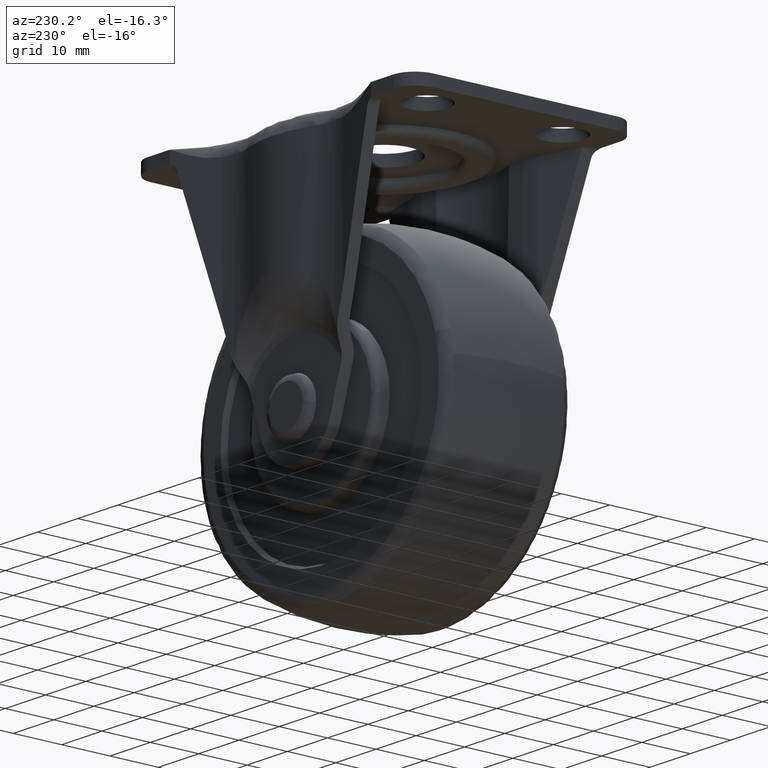
[diagram: clean part render]
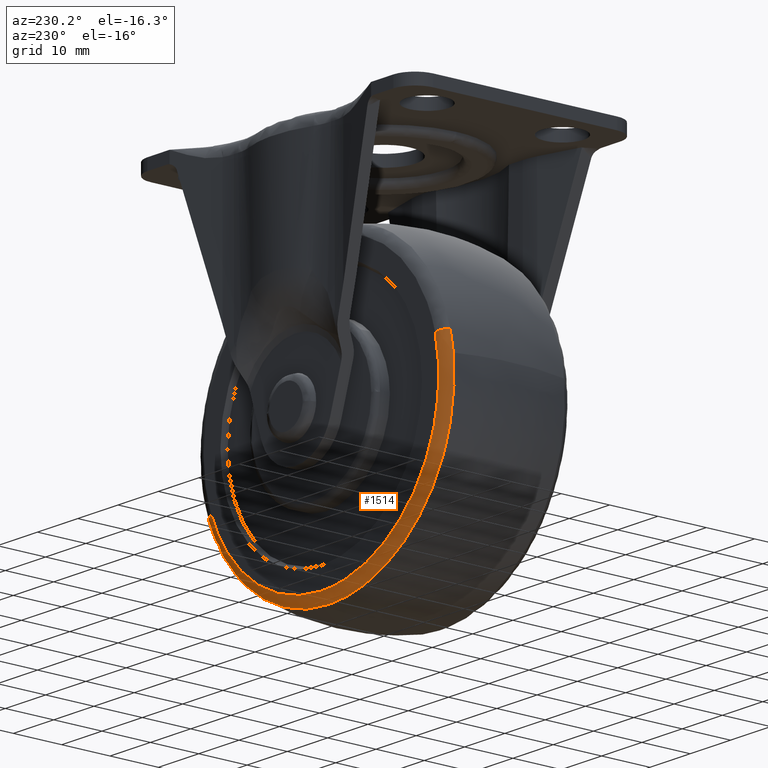
[diagram: same view with one face highlighted and labeled with its STEP entity id]
A machine part, auxiliary view. The second image highlights one B-rep face of the part: STEP entity #1514.
In plain terms, the highlighted face is a freeform B-spline surface patch.
Its self-contained STEP definition (entity closure, byte-faithful):
#1314=CARTESIAN_POINT('',(27.276071154664269,12.999999999999879,-10.486911735159930));
#1315=VERTEX_POINT('',#1314);
#1336=CARTESIAN_POINT('',(-28.304502118794069,12.999999999999879,7.267360946287144));
#1337=VERTEX_POINT('',#1336);
#1352=CARTESIAN_POINT('',(-30.190113501192521,11.458346236276659,7.751503661654002));
#1353=VERTEX_POINT('',#1352);
#1354=CARTESIAN_POINT('',(-28.304502118794069,12.999999999999879,7.267360946287144));
#1355=CARTESIAN_POINT('',(-28.601943165960460,13.000516784397400,7.343730826934033));
#1356=CARTESIAN_POINT('',(-29.115038738644699,12.875432114353980,7.475471378619806));
#1357=CARTESIAN_POINT('',(-29.691804316981749,12.443076544727910,7.623559609222435));
#1358=CARTESIAN_POINT('',(-30.029237934947869,11.963985388915210,7.710197836800468));
#1359=CARTESIAN_POINT('',(-30.152981338045361,11.621336451964989,7.741969742591822));
#1360=CARTESIAN_POINT('',(-30.190113501192521,11.458346236276659,7.751503661654002));
#1361=B_SPLINE_CURVE_WITH_KNOTS('',3,(#1354,#1355,#1356,#1357,#1358,#1359,#1360),.UNSPECIFIED.,.F.,.U.,(4,1,1,1,4),(0.000000290388395,0.921048666674197,1.590824266936530,2.176978937697951,2.679333112662247),.UNSPECIFIED.);
#1362=EDGE_CURVE('',#1337,#1353,#1361,.T.);
#1380=CARTESIAN_POINT('',(29.093172507093531,11.458333520081990,-11.185538065268309));
#1381=VERTEX_POINT('',#1380);
#1399=CARTESIAN_POINT('',(27.276071154664269,12.999999999999879,-10.486911735159930));
#1400=CARTESIAN_POINT('',(27.510548538967559,13.000244550194820,-10.577061948442321));
#1401=CARTESIAN_POINT('',(27.953204781751261,12.909414028035711,-10.747251303023409));
#1402=CARTESIAN_POINT('',(28.495647972405379,12.557829891310000,-10.955806040526509));
#1403=CARTESIAN_POINT('',(28.891522839425789,12.066817349290799,-11.108009221250700));
#1404=CARTESIAN_POINT('',(29.045541339690441,11.675705437125551,-11.167225169486359));
#1405=CARTESIAN_POINT('',(29.093172507093531,11.458333520081990,-11.185538065268309));
#1406=B_SPLINE_CURVE_WITH_KNOTS('',3,(#1399,#1400,#1401,#1402,#1403,#1404,#1405),.UNSPECIFIED.,.F.,.U.,(4,1,1,1,4),(0.000000290394483,0.753577384631769,1.423388876057444,2.009509702239837,2.679346172854964),.UNSPECIFIED.);
#1407=EDGE_CURVE('',#1315,#1381,#1406,.T.);
#1412=CARTESIAN_POINT('',(-28.185591142616687,12.996228408587063,7.236829796591108));
#1413=CARTESIAN_POINT('',(-35.422420939207775,12.996228408587061,-20.948761346025560));
#1414=CARTESIAN_POINT('',(-7.236829796591110,12.996228408587063,-28.185591142616687));
#1415=CARTESIAN_POINT('',(17.862205198810440,12.996228408587060,-34.629928016778194));
#1416=CARTESIAN_POINT('',(27.161480752764273,12.996228408587060,-10.442854824270864));
#1417=CARTESIAN_POINT('',(-29.919851770484950,13.106345489153590,7.682112243331616));
#1418=CARTESIAN_POINT('',(-37.601964013816563,13.106345489153593,-22.237739527153355));
#1419=CARTESIAN_POINT('',(-7.682112243331618,13.106345489153590,-29.919851770484950));
#1420=CARTESIAN_POINT('',(18.961267448257558,13.106345489153586,-36.760708967992812));
#1421=CARTESIAN_POINT('',(28.832727824566767,13.106345489153588,-11.085404128014002));
#1422=CARTESIAN_POINT('',(-30.213755327911024,11.338298996869856,7.757573851035462));
#1423=CARTESIAN_POINT('',(-37.971329178946490,11.338298996869854,-22.456181476875557));
#1424=CARTESIAN_POINT('',(-7.757573851035464,11.338298996869856,-30.213755327911024));
#1425=CARTESIAN_POINT('',(19.147524519285156,11.338298996869851,-37.121810460810210));
#1426=CARTESIAN_POINT('',(29.115952532461129,11.338298996869854,-11.194296368982357));
#1434=(BOUNDED_SURFACE()B_SPLINE_SURFACE(2,2,((#1412,#1417,#1422),(#1413,#1418,#1423),(#1414,#1419,#1424),(#1415,#1420,#1425),(#1416,#1421,#1426)),.UNSPECIFIED.,.F.,.F.,.U.)B_SPLINE_SURFACE_WITH_KNOTS((3,2,3),(3,3),(0.0,51.683521784377092,99.232361826004009),(0.0,3.062138862030660),.UNSPECIFIED.)GEOMETRIC_REPRESENTATION_ITEM()RATIONAL_B_SPLINE_SURFACE(((0.914431650194860,0.681684827787722,0.917015407765076),(0.646600820784391,0.482023964360682,0.648427813283232),(0.914431650194860,0.681684827787722,0.917015407765076),(0.668027287137228,0.497996833434845,0.669914820841780),(0.875006952105639,0.652294748691261,0.877479313857348)))REPRESENTATION_ITEM('')SURFACE());
#1435=CARTESIAN_POINT('',(0.0,12.999999999999879,-29.222583301868301));
#1436=VERTEX_POINT('',#1435);
#1437=CARTESIAN_POINT('',(0.0,12.999999999999879,-29.222583301868301));
#1438=CARTESIAN_POINT('',(1.740507578618445,12.999999999999870,-29.222736748513942));
#1439=CARTESIAN_POINT('',(5.404717564773534,12.999999999999890,-28.894329859673402));
#1440=CARTESIAN_POINT('',(10.274043141226530,12.999999999999870,-27.507806050460040));
#1441=CARTESIAN_POINT('',(15.160652550773371,12.999999999999810,-25.167103264106650));
#1442=CARTESIAN_POINT('',(19.269396634891748,12.999999999999931,-22.200565396522290));
#1443=CARTESIAN_POINT('',(22.615163732686899,12.999999999999870,-18.660862199151950));
#1444=CARTESIAN_POINT('',(25.267492044755681,12.999999999999890,-14.916168250398760));
#1445=CARTESIAN_POINT('',(26.618795948690099,12.999999999999890,-12.197084805331130));
#1446=CARTESIAN_POINT('',(27.276071154664269,12.999999999999879,-10.486911735159930));
#1447=B_SPLINE_CURVE_WITH_KNOTS('',3,(#1437,#1438,#1439,#1440,#1441,#1442,#1443,#1444,#1445,#1446),.UNSPECIFIED.,.F.,.U.,(4,1,1,1,1,1,1,4),(0.000000091332701,5.221526927930348,10.992735210749350,15.115035113657679,21.435779628184509,26.107715145500990,29.680352830185679,35.176714110060061),.UNSPECIFIED.);
#1448=EDGE_CURVE('',#1436,#1315,#1447,.T.);
#1449=ORIENTED_EDGE('',*,*,#1448,.T.);
#1450=ORIENTED_EDGE('',*,*,#1407,.T.);
#1451=CARTESIAN_POINT('',(0.0,11.458333692308800,-31.169359858084249));
#1452=VERTEX_POINT('',#1451);
#1453=CARTESIAN_POINT('',(0.0,11.458333692308800,-31.169359858084249));
#1454=CARTESIAN_POINT('',(1.661031798035533,11.458333692309260,-31.169413621249632));
#1455=CARTESIAN_POINT('',(5.569420188486874,11.458333689612139,-30.856460728220949));
#1456=CARTESIAN_POINT('',(10.687097814335580,11.458333677500949,-29.451174434579151));
#1457=CARTESIAN_POINT('',(14.935417559887821,11.458333660169700,-27.440201437893151));
#1458=CARTESIAN_POINT('',(18.252155230143490,11.458333642267251,-25.362930213383329));
#1459=CARTESIAN_POINT('',(21.522485098331028,11.458333619391841,-22.708665161897581));
#1460=CARTESIAN_POINT('',(24.359890721083069,11.458333592530151,-19.591840861025350));
#1461=CARTESIAN_POINT('',(27.038157354574061,11.458333559282829,-15.734090337861710));
#1462=CARTESIAN_POINT('',(28.392092794136762,11.458333535802540,-13.009624046275890));
#1463=CARTESIAN_POINT('',(29.093172507093531,11.458333520081990,-11.185538065268309));
#1464=B_SPLINE_CURVE_WITH_KNOTS('',3,(#1453,#1454,#1455,#1456,#1457,#1458,#1459,#1460,#1461,#1462,#1463),.UNSPECIFIED.,.F.,.U.,(4,1,1,1,1,1,1,1,4),(0.000000079452498,4.983141864944074,11.725047662135950,15.828861701065950,19.053161306219049,23.450059206301219,28.433239649027641,31.657652201441490,37.520148068174493),.UNSPECIFIED.);
#1465=EDGE_CURVE('',#1452,#1381,#1464,.T.);
#1466=ORIENTED_EDGE('',*,*,#1465,.F.);
#1467=CARTESIAN_POINT('',(-30.960887336973880,11.458347589749600,3.598922797563327));
#1468=VERTEX_POINT('',#1467);
#1469=CARTESIAN_POINT('',(-30.960887336973880,11.458347589749600,3.598922797563327));
#1470=CARTESIAN_POINT('',(-31.142741001151819,11.458347277240129,2.035183048548975));
#1471=CARTESIAN_POINT('',(-31.265961117802512,11.458346613614840,-1.051318203245586));
#1472=CARTESIAN_POINT('',(-30.687991478750980,11.458345312479420,-6.373046937045799));
#1473=CARTESIAN_POINT('',(-29.174720886936210,11.458343879317420,-11.454119380355131));
#1474=CARTESIAN_POINT('',(-26.809491668857628,11.458342373426190,-16.102764745734611));
#1475=CARTESIAN_POINT('',(-24.167619646392509,11.458341010284281,-19.864742343433239));
#1476=CARTESIAN_POINT('',(-21.044121332157260,11.458339658259190,-23.147969820337060));
#1477=CARTESIAN_POINT('',(-17.851323388258550,11.458338469642531,-25.636496556519390));
#1478=CARTESIAN_POINT('',(-14.632191371318919,11.458337393728470,-27.596030880639489));
#1479=CARTESIAN_POINT('',(-11.397085063313099,11.458336416523469,-29.098569620806071));
#1480=CARTESIAN_POINT('',(-6.433747461729930,11.458335077165660,-30.686614175202671));
#1481=CARTESIAN_POINT('',(-2.601094274496044,11.458334208502970,-31.170160178689951));
#1482=CARTESIAN_POINT('',(0.0,11.458333692308800,-31.169359858084249));
#1483=B_SPLINE_CURVE_WITH_KNOTS('',3,(#1469,#1470,#1471,#1472,#1473,#1474,#1475,#1476,#1477,#1478,#1479,#1480,#1481,#1482),.UNSPECIFIED.,.F.,.U.,(4,1,1,1,1,1,1,1,1,1,1,4),(0.000000182009437,4.722832643027623,9.240421908535112,16.016758111931519,20.534348796644078,24.846540083464529,29.774712067166170,34.086894471246460,36.961707157563822,41.068589599455088,44.764771290116030,52.567777121467188),.UNSPECIFIED.);
#1484=EDGE_CURVE('',#1468,#1452,#1483,.T.);
#1485=ORIENTED_EDGE('',*,*,#1484,.F.);
#1486=CARTESIAN_POINT('',(-30.190113501192521,11.458346236276659,7.751503661654002));
#1487=CARTESIAN_POINT('',(-30.540539028869969,11.458346765367381,6.386860297724188));
#1488=CARTESIAN_POINT('',(-30.798238490009108,11.458347217897581,4.998419761496065));
#1489=CARTESIAN_POINT('',(-30.960887336973880,11.458347589749600,3.598922797563327));
#1490=B_SPLINE_CURVE_WITH_KNOTS('',3,(#1486,#1487,#1488,#1489),.UNSPECIFIED.,.F.,.U.,(4,4),(1.373251E-009,4.226758515361672),.UNSPECIFIED.);
#1491=EDGE_CURVE('',#1353,#1468,#1490,.T.);
#1492=ORIENTED_EDGE('',*,*,#1491,.F.);
#1493=ORIENTED_EDGE('',*,*,#1362,.F.);
#1494=CARTESIAN_POINT('',(-28.304502118794069,12.999999999999879,7.267360946287144));
#1495=CARTESIAN_POINT('',(-28.649406602154311,12.999999999999890,5.924299924966973));
#1496=CARTESIAN_POINT('',(-29.147453801307119,12.999999999999901,3.188968952805091));
#1497=CARTESIAN_POINT('',(-29.329009411203280,12.999999999999821,-1.603700545303641));
#1498=CARTESIAN_POINT('',(-28.702597532293240,13.000000000000011,-6.161160171399254));
#1499=CARTESIAN_POINT('',(-27.387383136039730,12.999999999999799,-10.407594044160250));
#1500=CARTESIAN_POINT('',(-25.984207365843481,12.999999999999931,-13.509226146818110));
#1501=CARTESIAN_POINT('',(-24.061041868137838,12.999999999999950,-16.726861654862990));
#1502=CARTESIAN_POINT('',(-21.351228560769361,12.999999999999821,-20.169691533971150));
#1503=CARTESIAN_POINT('',(-17.820461439329190,12.999999999999909,-23.326693866163051));
#1504=CARTESIAN_POINT('',(-13.890130603547229,12.999999999999840,-25.822766053657439));
#1505=CARTESIAN_POINT('',(-10.087114363956269,12.999999999999940,-27.537141996869369));
#1506=CARTESIAN_POINT('',(-5.407795278252053,12.999999999999760,-28.870478759365739));
#1507=CARTESIAN_POINT('',(-2.010657375236800,13.000000000000011,-29.222909346571619));
#1508=CARTESIAN_POINT('',(0.0,12.999999999999879,-29.222583301868301));
#1509=B_SPLINE_CURVE_WITH_KNOTS('',3,(#1494,#1495,#1496,#1497,#1498,#1499,#1500,#1501,#1502,#1503,#1504,#1505,#1506,#1507,#1508),.UNSPECIFIED.,.F.,.U.,(4,1,1,1,1,1,1,1,1,1,1,1,4),(0.000000217661693,4.159923599651293,8.319870743806526,14.351814733529091,17.887768566467251,21.631718166171549,24.543746919167770,29.119512796261080,34.735524585455877,38.687462722689297,43.055415506781372,47.215374187569992,53.247275151064052),.UNSPECIFIED.);
#1510=EDGE_CURVE('',#1337,#1436,#1509,.T.);
#1511=ORIENTED_EDGE('',*,*,#1510,.T.);
#1512=EDGE_LOOP('',(#1449,#1450,#1466,#1485,#1492,#1493,#1511));
#1513=FACE_OUTER_BOUND('',#1512,.T.);
#1514=ADVANCED_FACE('',(#1513),#1434,.T.);